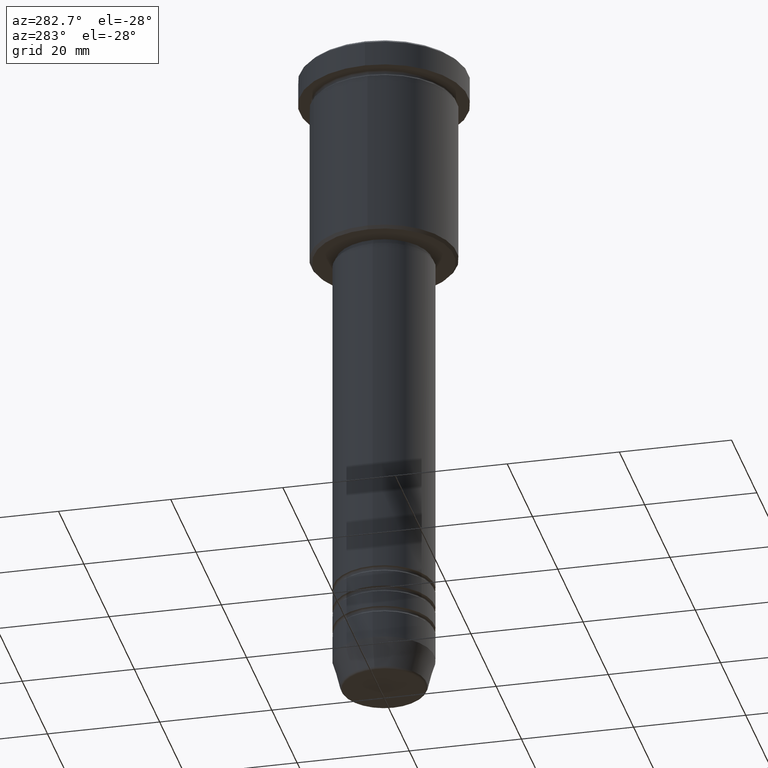
[diagram: clean part render]
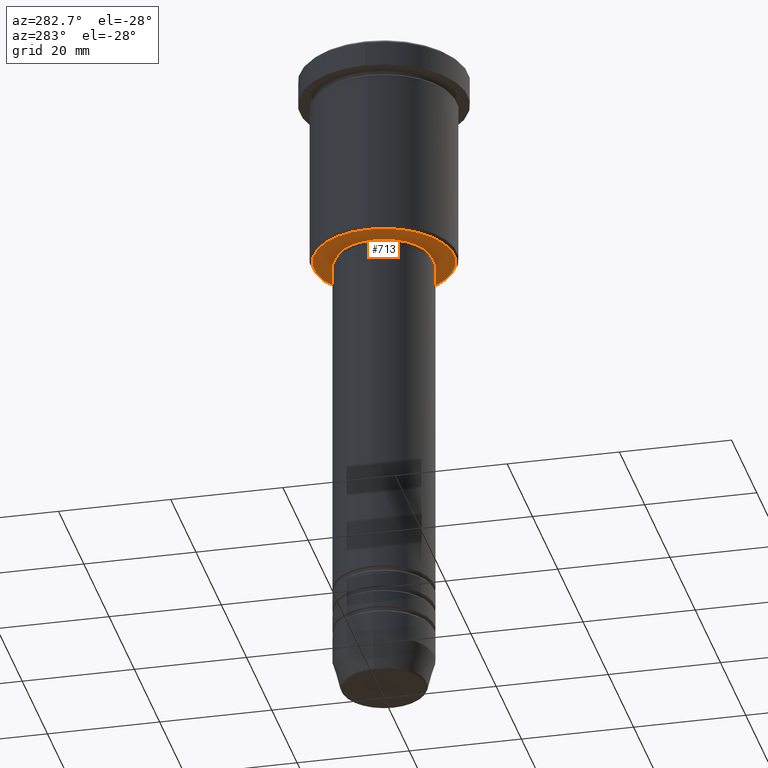
[diagram: same view with one face highlighted and labeled with its STEP entity id]
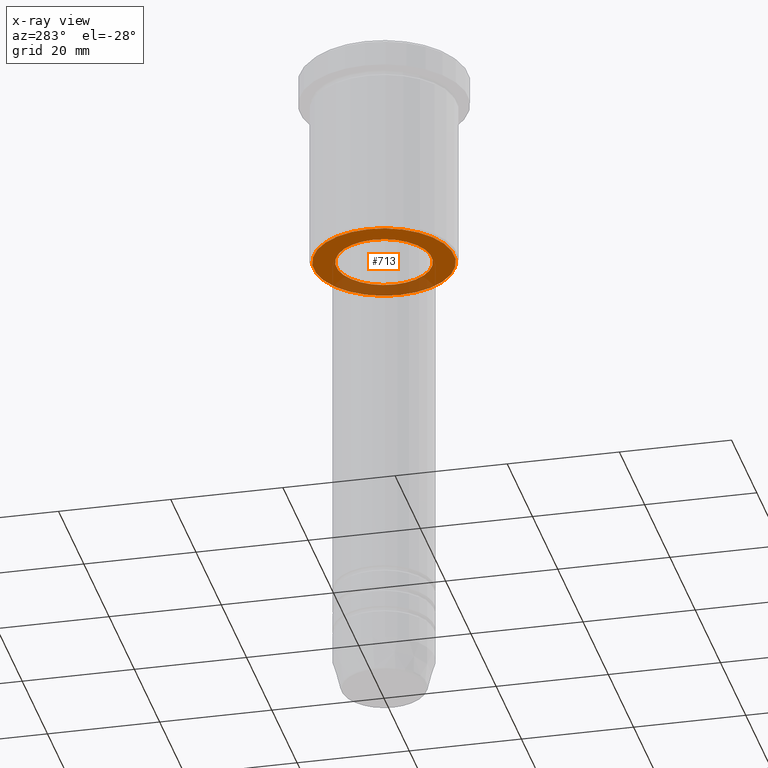
[diagram: x-ray of the same camera — body ghosted, the highlighted face saturated]
A machine part, auxiliary view. The second image highlights one B-rep face of the part: STEP entity #713.
The next image is the same camera in x-ray: the body ghosted, the highlighted face saturated — about 26% of this face is hidden behind the body in this view.
In plain terms, the highlighted planar face has unit normal (0, 0, -1).
Its self-contained STEP definition (entity closure, byte-faithful):
#13 = DIRECTION ( 'NONE',  ( -0.000000000000000000, -0.000000000000000000, 1.000000000000000000 ) ) ;
#57 = CARTESIAN_POINT ( 'NONE',  ( 12.50000000000001066, 0.000000000000000000, -36.00000000000000711 ) ) ;
#72 = EDGE_LOOP ( 'NONE', ( #924, #889 ) ) ;
#73 = FACE_BOUND ( 'NONE', #613, .T. ) ;
#88 = CARTESIAN_POINT ( 'NONE',  ( 0.000000000000000000, 0.000000000000000000, -36.00000000000000711 ) ) ;
#150 = VERTEX_POINT ( 'NONE', #254 ) ;
#204 = CIRCLE ( 'NONE', #1043, 12.50000000000001066 ) ;
#254 = CARTESIAN_POINT ( 'NONE',  ( 8.500000000000000000, 0.000000000000000000, -36.00000000000000711 ) ) ;
#257 = DIRECTION ( 'NONE',  ( -1.000000000000000000, 0.000000000000000000, 0.000000000000000000 ) ) ;
#258 = CIRCLE ( 'NONE', #581, 8.500000000000000000 ) ;
#319 = EDGE_CURVE ( 'NONE', #1178, #150, #258, .T. ) ;
#344 = CIRCLE ( 'NONE', #426, 8.500000000000000000 ) ;
#345 = CARTESIAN_POINT ( 'NONE',  ( 0.000000000000000000, 0.000000000000000000, -36.00000000000000711 ) ) ;
#383 = CARTESIAN_POINT ( 'NONE',  ( -12.50000000000001066, 1.561424668912876097E-15, -36.00000000000000711 ) ) ;
#426 = AXIS2_PLACEMENT_3D ( 'NONE', #898, #13, #938 ) ;
#429 = ORIENTED_EDGE ( 'NONE', *, *, #319, .T. ) ;
#443 = DIRECTION ( 'NONE',  ( 1.000000000000000000, 0.000000000000000000, 0.000000000000000000 ) ) ;
#463 = DIRECTION ( 'NONE',  ( -1.000000000000000000, 0.000000000000000000, -0.000000000000000000 ) ) ;
#473 = DIRECTION ( 'NONE',  ( -1.000000000000000000, 0.000000000000000000, 0.000000000000000000 ) ) ;
#548 = PLANE ( 'NONE',  #1078 ) ;
#581 = AXIS2_PLACEMENT_3D ( 'NONE', #345, #956, #443 ) ;
#613 = EDGE_LOOP ( 'NONE', ( #714, #429 ) ) ;
#654 = CARTESIAN_POINT ( 'NONE',  ( 0.000000000000000000, 0.000000000000000000, -36.00000000000000711 ) ) ;
#713 = ADVANCED_FACE ( 'NONE', ( #1084, #73 ), #548, .T. ) ;
#714 = ORIENTED_EDGE ( 'NONE', *, *, #1113, .T. ) ;
#720 = DIRECTION ( 'NONE',  ( 0.000000000000000000, 0.000000000000000000, -1.000000000000000000 ) ) ;
#745 = CARTESIAN_POINT ( 'NONE',  ( 0.000000000000000000, 13.00000000000000000, -36.00000000000000711 ) ) ;
#823 = VERTEX_POINT ( 'NONE', #383 ) ;
#889 = ORIENTED_EDGE ( 'NONE', *, *, #1054, .T. ) ;
#898 = CARTESIAN_POINT ( 'NONE',  ( 0.000000000000000000, 0.000000000000000000, -36.00000000000000711 ) ) ;
#905 = DIRECTION ( 'NONE',  ( 0.000000000000000000, 0.000000000000000000, -1.000000000000000000 ) ) ;
#924 = ORIENTED_EDGE ( 'NONE', *, *, #1167, .T. ) ;
#938 = DIRECTION ( 'NONE',  ( 1.000000000000000000, 0.000000000000000000, 0.000000000000000000 ) ) ;
#956 = DIRECTION ( 'NONE',  ( -0.000000000000000000, -0.000000000000000000, 1.000000000000000000 ) ) ;
#976 = AXIS2_PLACEMENT_3D ( 'NONE', #88, #1017, #473 ) ;
#997 = VERTEX_POINT ( 'NONE', #57 ) ;
#1007 = CARTESIAN_POINT ( 'NONE',  ( -8.500000000000000000, 1.040949779275250140E-15, -36.00000000000000711 ) ) ;
#1017 = DIRECTION ( 'NONE',  ( 0.000000000000000000, 0.000000000000000000, -1.000000000000000000 ) ) ;
#1043 = AXIS2_PLACEMENT_3D ( 'NONE', #654, #720, #257 ) ;
#1054 = EDGE_CURVE ( 'NONE', #823, #997, #1174, .T. ) ;
#1078 = AXIS2_PLACEMENT_3D ( 'NONE', #745, #905, #463 ) ;
#1084 = FACE_OUTER_BOUND ( 'NONE', #72, .T. ) ;
#1113 = EDGE_CURVE ( 'NONE', #150, #1178, #344, .T. ) ;
#1167 = EDGE_CURVE ( 'NONE', #997, #823, #204, .T. ) ;
#1174 = CIRCLE ( 'NONE', #976, 12.50000000000001066 ) ;
#1178 = VERTEX_POINT ( 'NONE', #1007 ) ;